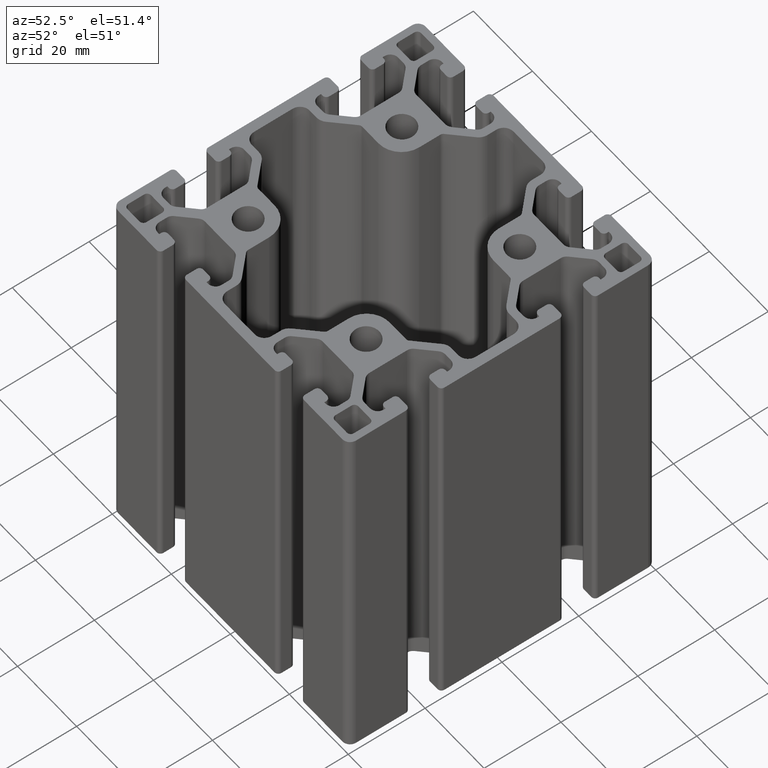
[diagram: clean part render]
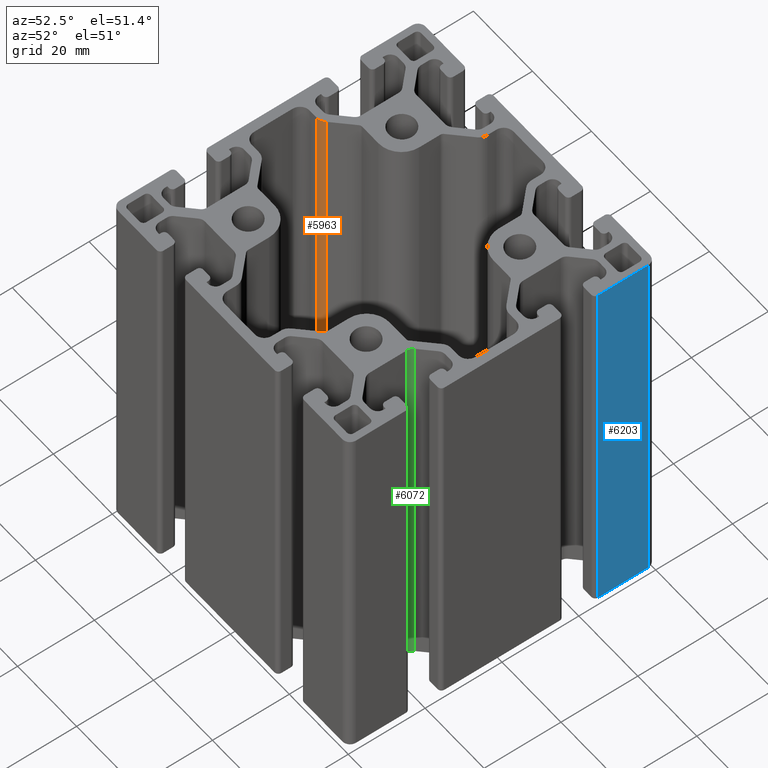
[diagram: same view with three faces highlighted in distinct colors, each labeled with its STEP entity id]
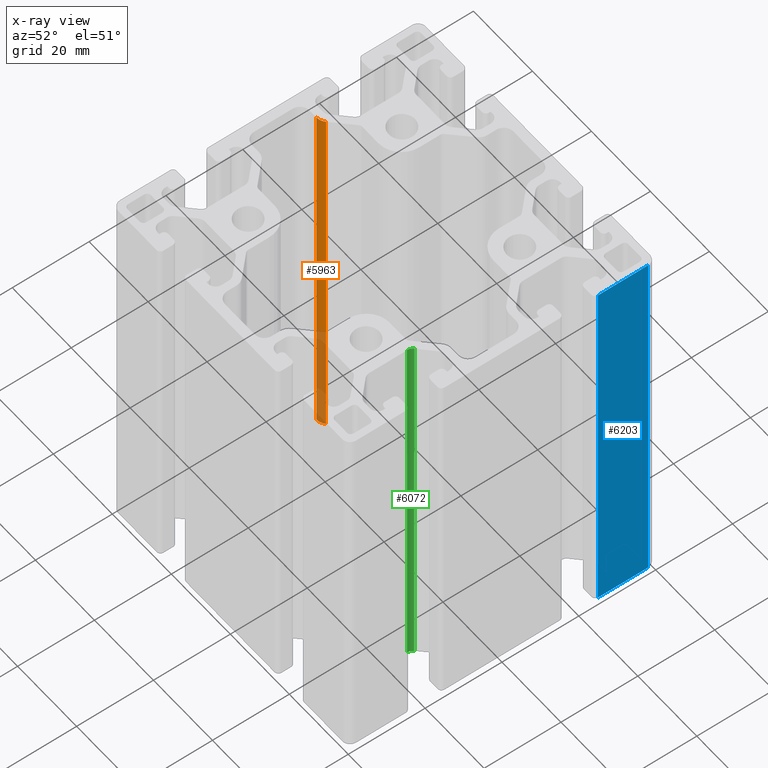
[diagram: x-ray of the same camera — body ghosted, the three highlighted faces saturated]
A machine part, auxiliary view with three faces highlighted in distinct colors.
The next image is the same camera in x-ray (body ghosted, the three faces saturated) — at least one of them is partly hidden behind the body in this view.
Their STEP definitions:

[orange] entity #5963 — the highlighted cylindrical surface (edge-blend (fillet) strip) has radius 3 mm, axis along (0, 0, 1).
#253=FACE_OUTER_BOUND('',#563,.T.);
#563=EDGE_LOOP('',(#4137,#4138,#4139,#4140));
#949=LINE('',#8992,#1573);
#950=LINE('',#8998,#1574);
#1573=VECTOR('',#7153,100.);
#1574=VECTOR('',#7160,100.);
#2143=CIRCLE('',#6330,3.);
#2144=CIRCLE('',#6331,3.);
#2493=VERTEX_POINT('',#8988);
#2494=VERTEX_POINT('',#8990);
#2495=VERTEX_POINT('',#8994);
#2496=VERTEX_POINT('',#8996);
#3163=EDGE_CURVE('',#2494,#2493,#949,.T.);
#3164=EDGE_CURVE('',#2493,#2495,#2143,.T.);
#3165=EDGE_CURVE('',#2496,#2494,#2144,.T.);
#3166=EDGE_CURVE('',#2496,#2495,#950,.T.);
#4137=ORIENTED_EDGE('',*,*,#3164,.F.);
#4138=ORIENTED_EDGE('',*,*,#3163,.F.);
#4139=ORIENTED_EDGE('',*,*,#3165,.F.);
#4140=ORIENTED_EDGE('',*,*,#3166,.T.);
#5788=CYLINDRICAL_SURFACE('',#6329,3.);
#5963=ADVANCED_FACE('',(#253),#5788,.T.);
#6329=AXIS2_PLACEMENT_3D('',#8993,#7154,#7155);
#6330=AXIS2_PLACEMENT_3D('',#8995,#7156,#7157);
#6331=AXIS2_PLACEMENT_3D('',#8997,#7158,#7159);
#7153=DIRECTION('',(0.,0.,1.));
#7154=DIRECTION('center_axis',(0.,0.,1.));
#7155=DIRECTION('ref_axis',(0.,-1.,0.));
#7156=DIRECTION('center_axis',(0.,0.,1.));
#7157=DIRECTION('ref_axis',(0.,-1.,0.));
#7158=DIRECTION('center_axis',(0.,0.,-1.));
#7159=DIRECTION('ref_axis',(0.,-1.,0.));
#7160=DIRECTION('',(0.,0.,1.));
#8988=CARTESIAN_POINT('',(-32.6819805153394,7.5,100.));
#8990=CARTESIAN_POINT('',(-32.6819805153394,7.5,0.));
#8992=CARTESIAN_POINT('',(-32.6819805153394,7.5,0.));
#8993=CARTESIAN_POINT('Origin',(-32.6819805153394,10.5,0.));
#8994=CARTESIAN_POINT('',(-30.5606601717798,8.37867965644036,100.));
#8995=CARTESIAN_POINT('Origin',(-32.6819805153394,10.5,100.));
#8996=CARTESIAN_POINT('',(-30.5606601717798,8.37867965644036,0.));
#8997=CARTESIAN_POINT('Origin',(-32.6819805153394,10.5,0.));
#8998=CARTESIAN_POINT('',(-30.5606601717798,8.37867965644036,0.));

[blue] entity #6203 — the highlighted planar face has unit normal (1, 0, 0).
#187=PLANE('',#6803);
#493=FACE_OUTER_BOUND('',#807,.T.);
#807=EDGE_LOOP('',(#5089,#5090,#5091,#5092));
#1004=LINE('',#9173,#1628);
#1438=LINE('',#10449,#2062);
#1439=LINE('',#10451,#2063);
#1440=LINE('',#10452,#2064);
#1628=VECTOR('',#7336,100.);
#2062=VECTOR('',#8592,13.0000019959489);
#2063=VECTOR('',#8593,100.);
#2064=VECTOR('',#8594,13.0000019959489);
#2554=VERTEX_POINT('',#9167);
#2556=VERTEX_POINT('',#9171);
#2987=VERTEX_POINT('',#10448);
#2988=VERTEX_POINT('',#10450);
#3252=EDGE_CURVE('',#2554,#2556,#1004,.T.);
#3886=EDGE_CURVE('',#2987,#2556,#1438,.T.);
#3887=EDGE_CURVE('',#2987,#2988,#1439,.T.);
#3888=EDGE_CURVE('',#2988,#2554,#1440,.T.);
#5089=ORIENTED_EDGE('',*,*,#3252,.T.);
#5090=ORIENTED_EDGE('',*,*,#3886,.F.);
#5091=ORIENTED_EDGE('',*,*,#3887,.T.);
#5092=ORIENTED_EDGE('',*,*,#3888,.T.);
#6203=ADVANCED_FACE('',(#493),#187,.T.);
#6803=AXIS2_PLACEMENT_3D('',#10447,#8590,#8591);
#7336=DIRECTION('',(0.,0.,-1.));
#8590=DIRECTION('center_axis',(1.,0.,0.));
#8591=DIRECTION('ref_axis',(0.,1.,0.));
#8592=DIRECTION('',(0.,-1.,0.));
#8593=DIRECTION('',(0.,0.,1.));
#8594=DIRECTION('',(0.,-1.,0.));
#9167=CARTESIAN_POINT('',(40.,24.9999980040511,100.));
#9171=CARTESIAN_POINT('',(40.,24.9999980040511,0.));
#9173=CARTESIAN_POINT('',(40.,24.9999980040512,0.));
#10447=CARTESIAN_POINT('Origin',(40.,-38.,0.));
#10448=CARTESIAN_POINT('',(40.,38.,0.));
#10449=CARTESIAN_POINT('',(40.,-19.,0.));
#10450=CARTESIAN_POINT('',(40.,38.,100.));
#10451=CARTESIAN_POINT('',(40.,38.,0.));
#10452=CARTESIAN_POINT('',(40.,-19.,100.));

[green] entity #6072 — the highlighted cylindrical surface (edge-blend (fillet) strip) has radius 2 mm, axis along (0, 0, 1).
#362=FACE_OUTER_BOUND('',#674,.T.);
#674=EDGE_LOOP('',(#4569,#4570,#4571,#4572));
#1169=LINE('',#9653,#1793);
#1170=LINE('',#9659,#1794);
#1793=VECTOR('',#7807,100.);
#1794=VECTOR('',#7814,100.);
#2251=CIRCLE('',#6547,2.00000000000002);
#2252=CIRCLE('',#6548,2.00000000000002);
#2717=VERTEX_POINT('',#9649);
#2718=VERTEX_POINT('',#9651);
#2719=VERTEX_POINT('',#9655);
#2720=VERTEX_POINT('',#9657);
#3491=EDGE_CURVE('',#2718,#2717,#1169,.T.);
#3492=EDGE_CURVE('',#2717,#2719,#2251,.T.);
#3493=EDGE_CURVE('',#2720,#2718,#2252,.T.);
#3494=EDGE_CURVE('',#2720,#2719,#1170,.T.);
#4569=ORIENTED_EDGE('',*,*,#3492,.F.);
#4570=ORIENTED_EDGE('',*,*,#3491,.F.);
#4571=ORIENTED_EDGE('',*,*,#3493,.F.);
#4572=ORIENTED_EDGE('',*,*,#3494,.T.);
#5842=CYLINDRICAL_SURFACE('',#6546,2.00000000000002);
#6072=ADVANCED_FACE('',(#362),#5842,.F.);
#6546=AXIS2_PLACEMENT_3D('',#9654,#7808,#7809);
#6547=AXIS2_PLACEMENT_3D('',#9656,#7810,#7811);
#6548=AXIS2_PLACEMENT_3D('',#9658,#7812,#7813);
#7807=DIRECTION('',(0.,0.,1.));
#7808=DIRECTION('center_axis',(0.,0.,1.));
#7809=DIRECTION('ref_axis',(-0.707106781186548,0.707106781186547,0.));
#7810=DIRECTION('center_axis',(0.,0.,-1.));
#7811=DIRECTION('ref_axis',(-0.707106781186548,0.707106781186547,0.));
#7812=DIRECTION('center_axis',(0.,0.,1.));
#7813=DIRECTION('ref_axis',(-0.707106781186548,0.707106781186547,0.));
#7814=DIRECTION('',(0.,0.,1.));
#9649=CARTESIAN_POINT('',(27.5,-15.0961940777126,100.));
#9651=CARTESIAN_POINT('',(27.5,-15.0961940777126,0.));
#9653=CARTESIAN_POINT('',(27.5,-15.0961940777126,0.));
#9654=CARTESIAN_POINT('Origin',(29.5,-15.0961940777126,0.));
#9655=CARTESIAN_POINT('',(28.0857864376269,-13.6819805153395,100.));
#9656=CARTESIAN_POINT('Origin',(29.5,-15.0961940777126,100.));
#9657=CARTESIAN_POINT('',(28.0857864376269,-13.6819805153395,0.));
#9658=CARTESIAN_POINT('Origin',(29.5,-15.0961940777126,0.));
#9659=CARTESIAN_POINT('',(28.0857864376269,-13.6819805153395,0.));